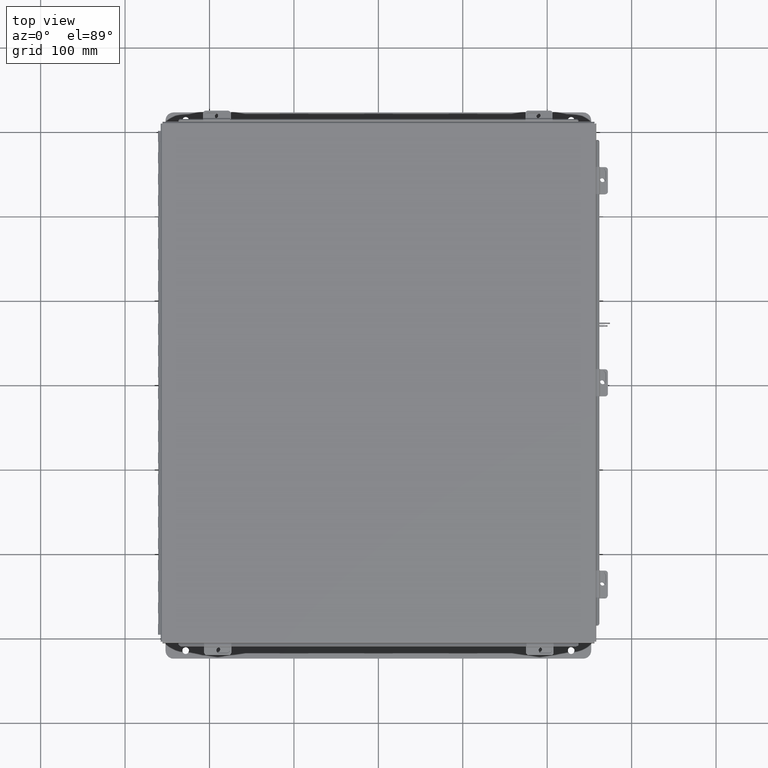
[diagram: clean part render]
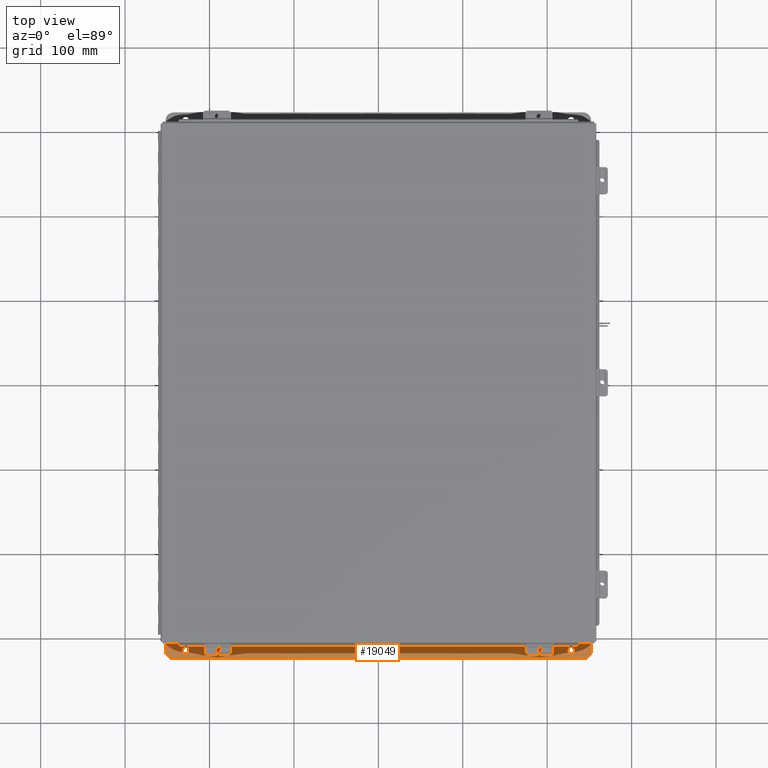
[diagram: same view with one face highlighted and labeled with its STEP entity id]
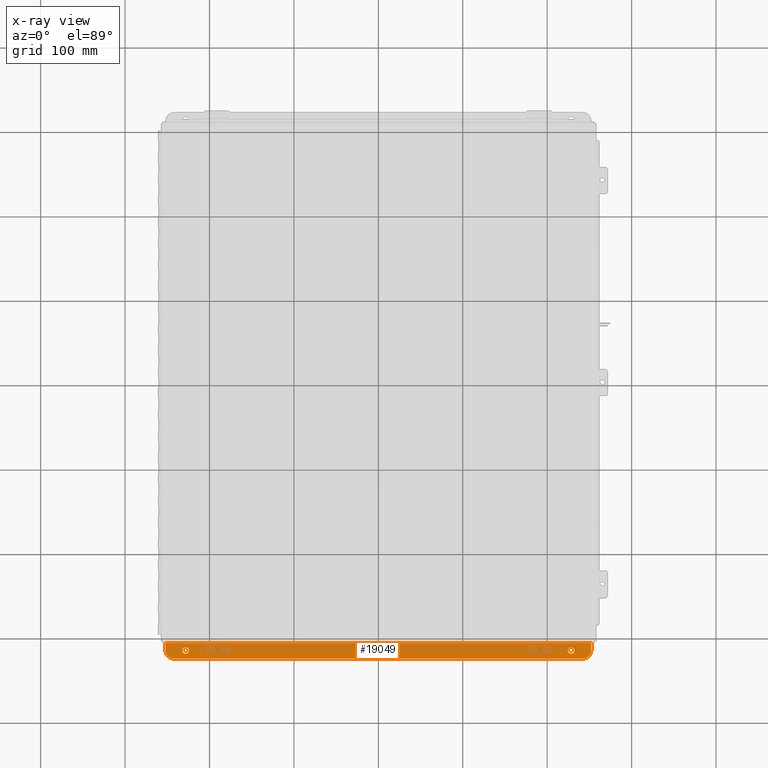
[diagram: x-ray of the same camera — body ghosted, the highlighted face saturated]
A machine part, top view. The second image highlights one B-rep face of the part: STEP entity #19049.
The next image is the same camera in x-ray: the body ghosted, the highlighted face saturated — about 28% of this face is hidden behind the body in this view.
In plain terms, the highlighted planar face has unit normal (0, -0, 1).
Its self-contained STEP definition (entity closure, byte-faithful):
#18 = VERTEX_POINT ( 'NONE', #19265 ) ;
#218 = DIRECTION ( 'NONE',  ( 0.0000000000000000000, -1.000000000000000000, 4.370956789862820400E-015 ) ) ;
#632 = CIRCLE ( 'NONE', #19239, 0.1560000000000001700 ) ;
#1359 = CARTESIAN_POINT ( 'NONE',  ( 9.550299999999998200, 0.7378000000000163300, -4.112300000000002100 ) ) ;
#1664 = VECTOR ( 'NONE', #3500, 39.37007874015748100 ) ;
#2227 = FACE_BOUND ( 'NONE', #23285, .T. ) ;
#2281 = PLANE ( 'NONE',  #20145 ) ;
#2300 = EDGE_LOOP ( 'NONE', ( #24520, #13092 ) ) ;
#2310 = DIRECTION ( 'NONE',  ( -0.0000000000000000000, -3.702694488566362300E-015, -1.000000000000000000 ) ) ;
#3395 = CARTESIAN_POINT ( 'NONE',  ( -9.925299999999980500, 0.7378000000000011200, -4.112300000000002100 ) ) ;
#3428 = CARTESIAN_POINT ( 'NONE',  ( -8.987799999999998200, 0.3628000000000008400, -4.112299999999996700 ) ) ;
#3484 = VERTEX_POINT ( 'NONE', #21977 ) ;
#3500 = DIRECTION ( 'NONE',  ( 1.000000000000000000, 4.910036603141682400E-031, -0.0000000000000000000 ) ) ;
#3609 = CARTESIAN_POINT ( 'NONE',  ( 9.925299999999998200, 0.01300000000001759100, -4.112299999999995000 ) ) ;
#4188 = DIRECTION ( 'NONE',  ( -4.919856193148104900E-031, -1.000000000000000000, 3.702694488566362300E-015 ) ) ;
#4206 = CARTESIAN_POINT ( 'NONE',  ( -8.987799999999998200, 0.3628000000000008400, -4.112299999999996700 ) ) ;
#4323 = VERTEX_POINT ( 'NONE', #1359 ) ;
#4443 = ORIENTED_EDGE ( 'NONE', *, *, #14155, .T. ) ;
#4457 = VERTEX_POINT ( 'NONE', #16437 ) ;
#4820 = CIRCLE ( 'NONE', #20665, 0.1560000000000001700 ) ;
#5212 = DIRECTION ( 'NONE',  ( -0.0000000000000000000, -3.702694488566362300E-015, -1.000000000000000000 ) ) ;
#5314 = DIRECTION ( 'NONE',  ( 0.0000000000000000000, -1.000000000000000000, 3.502369222646487400E-015 ) ) ;
#5997 = ORIENTED_EDGE ( 'NONE', *, *, #20059, .F. ) ;
#6087 = DIRECTION ( 'NONE',  ( 0.0000000000000000000, -1.000000000000000000, 3.502369222646487400E-015 ) ) ;
#6153 = LINE ( 'NONE', #11584, #10051 ) ;
#6583 = EDGE_CURVE ( 'NONE', #3484, #16033, #4820, .T. ) ;
#6863 = VERTEX_POINT ( 'NONE', #12362 ) ;
#7537 = VECTOR ( 'NONE', #22447, 39.37007874015748100 ) ;
#8021 = VERTEX_POINT ( 'NONE', #12313 ) ;
#8304 = AXIS2_PLACEMENT_3D ( 'NONE', #16629, #5212, #18577 ) ;
#8903 = EDGE_LOOP ( 'NONE', ( #24258, #11016, #5997, #17079, #18572, #4443 ) ) ;
#9348 = CIRCLE ( 'NONE', #8304, 0.1560000000000001700 ) ;
#9758 = LINE ( 'NONE', #3609, #19333 ) ;
#9890 = DIRECTION ( 'NONE',  ( 0.0000000000000000000, 3.702694488566362300E-015, 1.000000000000000000 ) ) ;
#9961 = AXIS2_PLACEMENT_3D ( 'NONE', #21363, #9890, #23304 ) ;
#10051 = VECTOR ( 'NONE', #15428, 39.37007874015748100 ) ;
#11016 = ORIENTED_EDGE ( 'NONE', *, *, #17797, .T. ) ;
#11177 = EDGE_CURVE ( 'NONE', #15479, #6863, #13083, .T. ) ;
#11256 = DIRECTION ( 'NONE',  ( -1.000000000000000000, -2.752408485047608900E-017, 0.0000000000000000000 ) ) ;
#11584 = CARTESIAN_POINT ( 'NONE',  ( 9.925299999999998200, 1.748382715945128500E-014, -4.112299999999995000 ) ) ;
#11656 = DIRECTION ( 'NONE',  ( 0.0000000000000000000, 3.702694488566362300E-015, 1.000000000000000000 ) ) ;
#11773 = CARTESIAN_POINT ( 'NONE',  ( -2.035385365534024800E-024, -1.311287036958846300E-014, -4.112299999999999400 ) ) ;
#11780 = EDGE_CURVE ( 'NONE', #19637, #18, #6153, .T. ) ;
#11823 = LINE ( 'NONE', #14920, #1664 ) ;
#12313 = CARTESIAN_POINT ( 'NONE',  ( -9.925299999999996500, 0.01299999999999792100, -4.112299999999999400 ) ) ;
#12362 = CARTESIAN_POINT ( 'NONE',  ( -8.987800000000007100, 0.5188000000000010400, -4.112299999999996700 ) ) ;
#12958 = FACE_BOUND ( 'NONE', #2300, .T. ) ;
#13083 = CIRCLE ( 'NONE', #21616, 0.1560000000000001700 ) ;
#13092 = ORIENTED_EDGE ( 'NONE', *, *, #11177, .T. ) ;
#13324 = ORIENTED_EDGE ( 'NONE', *, *, #20004, .T. ) ;
#13731 = CARTESIAN_POINT ( 'NONE',  ( 8.987799999999998200, 0.3628000000000161700, -4.112300000000001200 ) ) ;
#13986 = CARTESIAN_POINT ( 'NONE',  ( 8.987799999999989400, 0.5188000000000163600, -4.112300000000001200 ) ) ;
#14155 = EDGE_CURVE ( 'NONE', #19637, #4323, #18028, .T. ) ;
#14920 = CARTESIAN_POINT ( 'NONE',  ( 9.925300000000016000, 0.7378000000000163300, -4.112300000000002100 ) ) ;
#15428 = DIRECTION ( 'NONE',  ( -4.919856193148104900E-031, -1.000000000000000000, 3.702694488566362300E-015 ) ) ;
#15479 = VERTEX_POINT ( 'NONE', #17198 ) ;
#15639 = DIRECTION ( 'NONE',  ( 0.0000000000000000000, -1.000000000000000000, 3.502369222646487400E-015 ) ) ;
#16033 = VERTEX_POINT ( 'NONE', #13986 ) ;
#16236 = ORIENTED_EDGE ( 'NONE', *, *, #6583, .T. ) ;
#16437 = CARTESIAN_POINT ( 'NONE',  ( -9.550299999999998200, 0.7378000000000011200, -4.112299999999998500 ) ) ;
#16629 = CARTESIAN_POINT ( 'NONE',  ( 8.987799999999998200, 0.3628000000000161700, -4.112300000000001200 ) ) ;
#16751 = DIRECTION ( 'NONE',  ( -0.0000000000000000000, -3.702694488566362300E-015, -1.000000000000000000 ) ) ;
#16948 = EDGE_CURVE ( 'NONE', #18, #8021, #9758, .T. ) ;
#17079 = ORIENTED_EDGE ( 'NONE', *, *, #16948, .F. ) ;
#17198 = CARTESIAN_POINT ( 'NONE',  ( -8.987800000000007100, 0.2068000000000006800, -4.112299999999995800 ) ) ;
#17549 = DIRECTION ( 'NONE',  ( -0.0000000000000000000, -3.702694488566362300E-015, -1.000000000000000000 ) ) ;
#17622 = EDGE_CURVE ( 'NONE', #4457, #4323, #11823, .T. ) ;
#17797 = EDGE_CURVE ( 'NONE', #4457, #23347, #23513, .T. ) ;
#18028 = CIRCLE ( 'NONE', #9961, 0.3750000000000000600 ) ;
#18572 = ORIENTED_EDGE ( 'NONE', *, *, #11780, .F. ) ;
#18577 = DIRECTION ( 'NONE',  ( 0.0000000000000000000, -1.000000000000000000, 3.502369222646487400E-015 ) ) ;
#18601 = CARTESIAN_POINT ( 'NONE',  ( -9.925299999999980500, 0.3628000000000008400, -4.112299999999996700 ) ) ;
#19049 = ADVANCED_FACE ( 'NONE', ( #12958, #2227, #22562 ), #2281, .T. ) ;
#19239 = AXIS2_PLACEMENT_3D ( 'NONE', #3428, #16751, #5314 ) ;
#19265 = CARTESIAN_POINT ( 'NONE',  ( 9.925299999999998200, 0.01300000000001759100, -4.112299999999995000 ) ) ;
#19333 = VECTOR ( 'NONE', #11256, 39.37007874015748100 ) ;
#19637 = VERTEX_POINT ( 'NONE', #23153 ) ;
#20004 = EDGE_CURVE ( 'NONE', #16033, #3484, #9348, .T. ) ;
#20059 = EDGE_CURVE ( 'NONE', #8021, #23347, #22862, .T. ) ;
#20145 = AXIS2_PLACEMENT_3D ( 'NONE', #11773, #23099, #4188 ) ;
#20665 = AXIS2_PLACEMENT_3D ( 'NONE', #13731, #2310, #15639 ) ;
#21127 = EDGE_CURVE ( 'NONE', #6863, #15479, #632, .T. ) ;
#21363 = CARTESIAN_POINT ( 'NONE',  ( 9.550299999999998200, 0.3628000000000161700, -4.112299999999996700 ) ) ;
#21616 = AXIS2_PLACEMENT_3D ( 'NONE', #4206, #17549, #6087 ) ;
#21977 = CARTESIAN_POINT ( 'NONE',  ( 8.987799999999989400, 0.2068000000000159700, -4.112300000000000300 ) ) ;
#22447 = DIRECTION ( 'NONE',  ( 4.919856193148104900E-031, 1.000000000000000000, -3.702694488566362300E-015 ) ) ;
#22562 = FACE_OUTER_BOUND ( 'NONE', #8903, .T. ) ;
#22862 = LINE ( 'NONE', #3395, #7537 ) ;
#23099 = DIRECTION ( 'NONE',  ( 0.0000000000000000000, 3.702694488566362300E-015, 1.000000000000000000 ) ) ;
#23153 = CARTESIAN_POINT ( 'NONE',  ( 9.925300000000016000, 0.3628000000000161700, -4.112300000000001200 ) ) ;
#23155 = CARTESIAN_POINT ( 'NONE',  ( -9.550299999999998200, 0.3628000000000008400, -4.112300000000001200 ) ) ;
#23285 = EDGE_LOOP ( 'NONE', ( #13324, #16236 ) ) ;
#23304 = DIRECTION ( 'NONE',  ( 0.0000000000000000000, -1.000000000000000000, 4.370956789862820400E-015 ) ) ;
#23347 = VERTEX_POINT ( 'NONE', #18601 ) ;
#23513 = CIRCLE ( 'NONE', #24008, 0.3750000000000000600 ) ;
#24008 = AXIS2_PLACEMENT_3D ( 'NONE', #23155, #11656, #218 ) ;
#24258 = ORIENTED_EDGE ( 'NONE', *, *, #17622, .F. ) ;
#24520 = ORIENTED_EDGE ( 'NONE', *, *, #21127, .T. ) ;